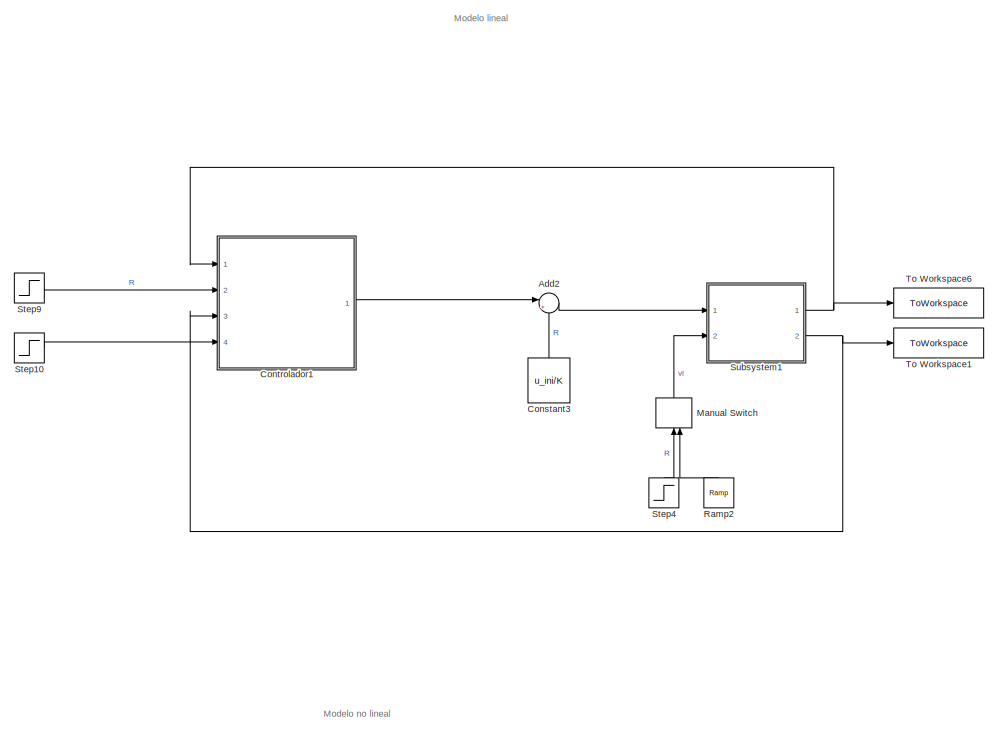
[diagram: root canvas - part 1/2, full width, top band]
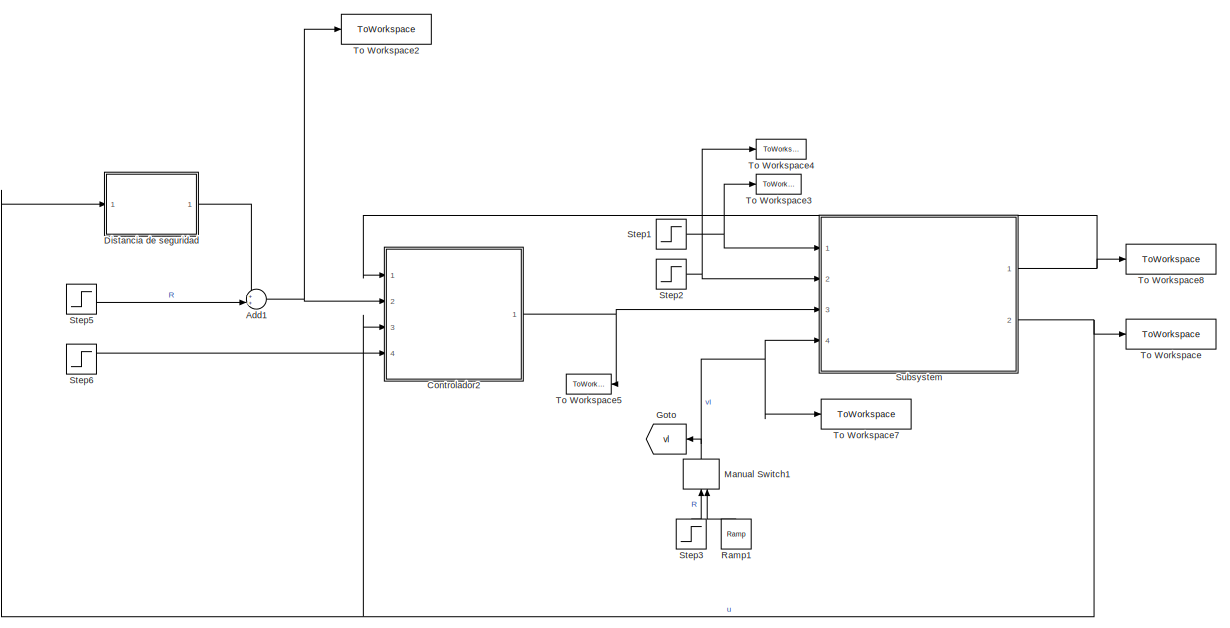
[diagram: root canvas - part 2/2, full width, bottom band]
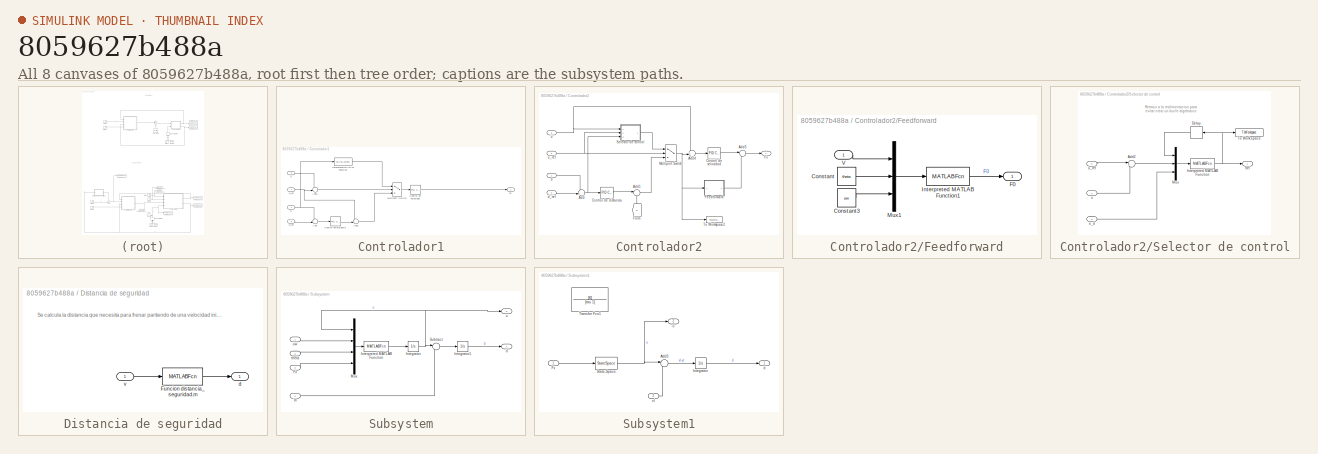
[diagram: thumbnail index - all 8 canvases of the model, root first then tree order]
MODEL slx_8059627b488a
KIND model
CONFIG AbsTol = auto
CONFIG EnableMultiTasking = off
CONFIG FixedStep = auto
CONFIG MaxStep = auto
CONFIG MinStep = auto
CONFIG RelTol = 1e-3
CONFIG SampleTimeConstraint = Unconstrained
CONFIG Solver = VariableStepAuto
CONFIG SolverName = VariableStepAuto
CONFIG StartTime = 0.0
CONFIG StopTime = 200.0
BLOCK [Sum] Add1
  IconShape = round
  InputSameDT = off
  Inputs = ++|
  OutDataTypeStr = Inherit: Inherit via internal rule
  Ports = [2, 1]
  SaturateOnIntegerOverflow = off
BLOCK [Sum] Add2
  Commented = on
  IconShape = round
  InputSameDT = off
  Inputs = |++
  OutDataTypeStr = Inherit: Inherit via internal rule
  Ports = [2, 1]
  SaturateOnIntegerOverflow = off
BLOCK [Constant] Constant3
  Commented = on
  SampleTime = 0
  Value = u_ini/K
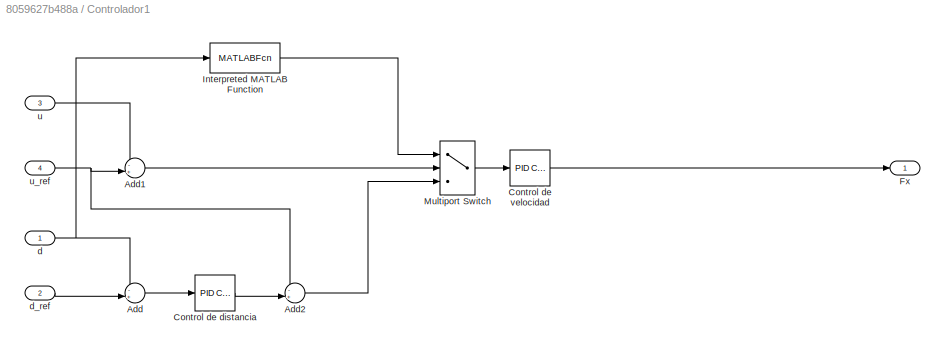
BLOCK [SubSystem] Controlador1
  Commented = on
  Ports = [4, 1]
  RequestExecContextInheritance = off
BLOCK [Sum] Controlador1/Add
  IconShape = round
  InputSameDT = off
  Inputs = -+|
  OutDataTypeStr = Inherit: Inherit via internal rule
  Ports = [2, 1]
  SaturateOnIntegerOverflow = off
BLOCK [Sum] Controlador1/Add1
  IconShape = round
  InputSameDT = off
  Inputs = -+|
  OutDataTypeStr = Inherit: Inherit via internal rule
  Ports = [2, 1]
  SaturateOnIntegerOverflow = off
BLOCK [Sum] Controlador1/Add2
  IconShape = round
  InputSameDT = off
  Inputs = -+|
  OutDataTypeStr = Inherit: Inherit via internal rule
  Ports = [2, 1]
  SaturateOnIntegerOverflow = off
BLOCK [Reference] Controlador1/Control de distancia  REF=simulink/Continuous/PID Controller
  Ports = [1, 1]
  SourceBlock = simulink/Continuous/PID Controller
  SourceProductBaseCode = SL
  SourceProductName = Simulink
  SourceType = PID 1dof
BLOCK [Reference] Controlador1/Control de velocidad  REF=simulink/Continuous/PID Controller
  Ports = [1, 1]
  SourceBlock = simulink/Continuous/PID Controller
  SourceProductBaseCode = SL
  SourceProductName = Simulink
  SourceType = PID 1dof
BLOCK [Outport] Controlador1/Fx
  IconDisplay = Port number
BLOCK [MATLABFcn] Controlador1/Interpreted MATLAB Function
  MATLABFcn = selector_control
  Ports = [1, 1]
BLOCK [MultiPortSwitch] Controlador1/Multiport Switch
  InputSameDT = off
  Inputs = 2
  Ports = [3, 1]
  SaturateOnIntegerOverflow = off
BLOCK [Inport] Controlador1/d
  IconDisplay = Port number
BLOCK [Inport] Controlador1/d_ref
  IconDisplay = Port number
  Port = 2
BLOCK [Inport] Controlador1/u
  IconDisplay = Port number
  Port = 3
BLOCK [Inport] Controlador1/u_ref
  IconDisplay = Port number
  Port = 4
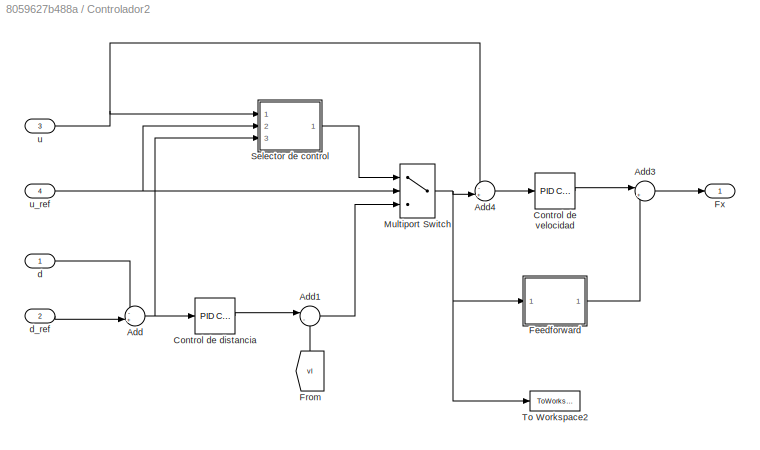
BLOCK [SubSystem] Controlador2
  Ports = [4, 1]
  RequestExecContextInheritance = off
BLOCK [Sum] Controlador2/Add
  IconShape = round
  InputSameDT = off
  Inputs = -+|
  OutDataTypeStr = Inherit: Inherit via internal rule
  Ports = [2, 1]
  SaturateOnIntegerOverflow = off
BLOCK [Sum] Controlador2/Add1
  IconShape = round
  InputSameDT = off
  Inputs = |-+
  OutDataTypeStr = Inherit: Inherit via internal rule
  Ports = [2, 1]
  SaturateOnIntegerOverflow = off
BLOCK [Sum] Controlador2/Add3
  IconShape = round
  InputSameDT = off
  Inputs = |++
  OutDataTypeStr = Inherit: Inherit via internal rule
  Ports = [2, 1]
  SaturateOnIntegerOverflow = off
BLOCK [Sum] Controlador2/Add4
  IconShape = round
  InputSameDT = off
  Inputs = -+|
  OutDataTypeStr = Inherit: Inherit via internal rule
  Ports = [2, 1]
  SaturateOnIntegerOverflow = off
BLOCK [Reference] Controlador2/Control de distancia  REF=simulink/Continuous/PID Controller
  Ports = [1, 1]
  SourceBlock = simulink/Continuous/PID Controller
  SourceProductBaseCode = SL
  SourceProductName = Simulink
  SourceType = PID 1dof
BLOCK [Reference] Controlador2/Control de velocidad  REF=simulink/Continuous/PID Controller
  Ports = [1, 1]
  SourceBlock = simulink/Continuous/PID Controller
  SourceProductBaseCode = SL
  SourceProductName = Simulink
  SourceType = PID 1dof
BLOCK [SubSystem] Controlador2/Feedforward
  Ports = [1, 1]
  RequestExecContextInheritance = off
BLOCK [Constant] Controlador2/Feedforward/Constant
  Value = theta
BLOCK [Constant] Controlador2/Feedforward/Constant3
  Value = uw
BLOCK [Outport] Controlador2/Feedforward/F0
  IconDisplay = Port number
BLOCK [MATLABFcn] Controlador2/Feedforward/Interpreted MATLAB Function1
  MATLABFcn = punto_op
  OutputDimensions = 1
  Ports = [1, 1]
BLOCK [Mux] Controlador2/Feedforward/Mux1
  DisplayOption = bar
  Inputs = 3
  Ports = [3, 1]
BLOCK [Inport] Controlador2/Feedforward/V
  IconDisplay = Port number
BLOCK [From] Controlador2/From
  GotoTag = vl
  TagVisibility = global
BLOCK [Outport] Controlador2/Fx
  IconDisplay = Port number
BLOCK [MultiPortSwitch] Controlador2/Multiport Switch
  InputSameDT = off
  Inputs = 2
  Ports = [3, 1]
  SaturateOnIntegerOverflow = off
BLOCK [SubSystem] Controlador2/Selector de control
  Ports = [3, 1]
  RequestExecContextInheritance = off
BLOCK [Sum] Controlador2/Selector de control/Add2
  IconShape = round
  InputSameDT = off
  Inputs = |+-
  OutDataTypeStr = Inherit: Inherit via internal rule
  Ports = [2, 1]
  SaturateOnIntegerOverflow = off
BLOCK [Delay] Controlador2/Selector de control/Delay
  DelayLength = 1
  InputPortMap = u0
  Ports = [1, 1]
BLOCK [MATLABFcn] Controlador2/Selector de control/Interpreted MATLAB Function
  MATLABFcn = selector_control
  OutputDimensions = 1
  Ports = [1, 1]
BLOCK [Mux] Controlador2/Selector de control/Mux
  DisplayOption = bar
  Inputs = 3
  Ports = [3, 1]
BLOCK [Outport] Controlador2/Selector de control/Sel
  IconDisplay = Port number
BLOCK [ToWorkspace] Controlador2/Selector de control/To Workspace
  FixptAsFi = on
  MaxDataPoints = inf
  Ports = [1]
  SampleTime = -1
  SaveFormat = Timeseries
  VariableName = modo_control
BLOCK [Inport] Controlador2/Selector de control/e_d
  IconDisplay = Port number
  Port = 3
BLOCK [Inport] Controlador2/Selector de control/u
  IconDisplay = Port number
BLOCK [Inport] Controlador2/Selector de control/u_ref
  IconDisplay = Port number
  Port = 2
BLOCK [ToWorkspace] Controlador2/To Workspace2
  FixptAsFi = on
  MaxDataPoints = inf
  Ports = [1]
  SampleTime = -1
  SaveFormat = Timeseries
  VariableName = u_ref
BLOCK [Inport] Controlador2/d
  IconDisplay = Port number
BLOCK [Inport] Controlador2/d_ref
  IconDisplay = Port number
  Port = 2
BLOCK [Inport] Controlador2/u
  IconDisplay = Port number
  Port = 3
BLOCK [Inport] Controlador2/u_ref
  IconDisplay = Port number
  Port = 4
BLOCK [SubSystem] Distancia de seguridad
  Ports = [1, 1]
  RequestExecContextInheritance = off
BLOCK [MATLABFcn] Distancia de seguridad/Funcion distancia_seguridad.m
  MATLABFcn = distancia_seguridad
  Ports = [1, 1]
BLOCK [Outport] Distancia de seguridad/d
  IconDisplay = Port number
BLOCK [Inport] Distancia de seguridad/v
  IconDisplay = Port number
BLOCK [Goto] Goto
  GotoTag = vl
  TagVisibility = global
BLOCK [ManualSwitch] Manual Switch
  Commented = on
BLOCK [ManualSwitch] Manual Switch1
BLOCK [Reference] Ramp1  REF=simulink/Sources/Ramp
  Ports = [0, 1]
  SourceBlock = simulink/Sources/Ramp
  SourceProductBaseCode = SL
  SourceProductName = Simulink
  SourceType = Ramp
BLOCK [Reference] Ramp2  REF=simulink/Sources/Ramp
  Commented = on
  Ports = [0, 1]
  SourceBlock = simulink/Sources/Ramp
  SourceProductBaseCode = SL
  SourceProductName = Simulink
  SourceType = Ramp
BLOCK [Step] Step1
  After = uw+delta_uw
  Before = uw
  SampleTime = 0
  Time = t_pert
BLOCK [Step] Step10
  After = u_ref + delta_u_ref
  Before = u_ref
  Commented = on
  SampleTime = 0
  Time = t_ref
BLOCK [Step] Step2
  After = theta+delta_theta
  Before = theta
  SampleTime = 0
  Time = t_pert
BLOCK [Step] Step3
  After = delta_vl+vl
  Before = vl
  SampleTime = 0
  Time = t_vl
BLOCK [Step] Step4
  After = delta_vl+vl
  Before = vl
  Commented = on
  SampleTime = 0
  Time = t_vl
BLOCK [Step] Step5
  After = d_ref + delta_d_ref
  Before = d_ref
  SampleTime = 0
  Time = t_ref
BLOCK [Step] Step6
  After = u_ref + delta_u_ref
  Before = u_ref
  SampleTime = 0
  Time = t_ref
BLOCK [Step] Step9
  After = d_ref + delta_d_ref
  Before = d_ref
  Commented = on
  SampleTime = 0
  Time = t_ref
BLOCK [SubSystem] Subsystem
  Ports = [4, 2]
  RequestExecContextInheritance = off
BLOCK [Inport] Subsystem/Fx
  IconDisplay = Port number
  Port = 3
BLOCK [Integrator] Subsystem/Integrator
  InitialCondition = u_ini
  Ports = [1, 1]
BLOCK [Integrator] Subsystem/Integrator1
  InitialCondition = d_0
  Ports = [1, 1]
BLOCK [MATLABFcn] Subsystem/Interpreted MATLAB Function
  MATLABFcn = dinamica
  Ports = [1, 1]
BLOCK [Mux] Subsystem/Mux
  DisplayOption = bar
  Ports = [4, 1]
BLOCK [Sum] Subsystem/Subtract
  IconShape = round
  InputSameDT = off
  Inputs = |-+
  OutDataTypeStr = Inherit: Inherit via internal rule
  Ports = [2, 1]
  SaturateOnIntegerOverflow = off
BLOCK [Inport] Subsystem/Vl
  IconDisplay = Port number
  Port = 4
BLOCK [Outport] Subsystem/d
  IconDisplay = Port number
BLOCK [Inport] Subsystem/theta
  IconDisplay = Port number
  Port = 2
BLOCK [Outport] Subsystem/u
  IconDisplay = Port number
  Port = 2
BLOCK [Inport] Subsystem/uw
  IconDisplay = Port number
BLOCK [SubSystem] Subsystem1
  Commented = on
  Ports = [2, 2]
  RequestExecContextInheritance = off
BLOCK [Sum] Subsystem1/Add3
  IconShape = round
  InputSameDT = off
  Inputs = |-+
  OutDataTypeStr = Inherit: Inherit via internal rule
  Ports = [2, 1]
  SaturateOnIntegerOverflow = off
BLOCK [Inport] Subsystem1/Fx
  IconDisplay = Port number
BLOCK [Integrator] Subsystem1/Integrator
  InitialCondition = d_0
  Ports = [1, 1]
BLOCK [StateSpace] Subsystem1/State-Space
  A = -1/tau
  B = K/tau
  D = 0
  InitialCondition = u_ini
  Ports = [1, 1]
BLOCK [TransferFcn] Subsystem1/Transfer Fcn1
  Commented = on
  Denominator = [tau 1]
  Numerator = [K]
BLOCK [Outport] Subsystem1/d
  IconDisplay = Port number
BLOCK [Outport] Subsystem1/u
  IconDisplay = Port number
  Port = 2
BLOCK [Inport] Subsystem1/vl
  IconDisplay = Port number
  Port = 2
BLOCK [ToWorkspace] To Workspace
  FixptAsFi = on
  MaxDataPoints = inf
  Ports = [1]
  SampleTime = -1
  SaveFormat = Timeseries
  VariableName = u
BLOCK [ToWorkspace] To Workspace1
  Commented = on
  FixptAsFi = on
  MaxDataPoints = inf
  Ports = [1]
  SampleTime = -1
  SaveFormat = Timeseries
  VariableName = u_lin
BLOCK [ToWorkspace] To Workspace2
  FixptAsFi = on
  MaxDataPoints = inf
  Ports = [1]
  SampleTime = -1
  SaveFormat = Timeseries
  VariableName = R
BLOCK [ToWorkspace] To Workspace3
  FixptAsFi = on
  MaxDataPoints = inf
  Ports = [1]
  SampleTime = -1
  SaveFormat = Timeseries
  VariableName = uw
BLOCK [ToWorkspace] To Workspace4
  FixptAsFi = on
  MaxDataPoints = inf
  Ports = [1]
  SampleTime = -1
  SaveFormat = Timeseries
  VariableName = theta
BLOCK [ToWorkspace] To Workspace5
  FixptAsFi = on
  MaxDataPoints = inf
  Ports = [1]
  SampleTime = -1
  SaveFormat = Timeseries
  VariableName = Fx
BLOCK [ToWorkspace] To Workspace6
  Commented = on
  FixptAsFi = on
  MaxDataPoints = inf
  Ports = [1]
  SampleTime = -1
  SaveFormat = Timeseries
  VariableName = d_lin
BLOCK [ToWorkspace] To Workspace7
  FixptAsFi = on
  MaxDataPoints = inf
  Ports = [1]
  SampleTime = -1
  SaveFormat = Timeseries
  VariableName = vl
BLOCK [ToWorkspace] To Workspace8
  FixptAsFi = on
  MaxDataPoints = inf
  Ports = [1]
  SampleTime = -1
  SaveFormat = Timeseries
  VariableName = d
ANNOTATION (root): Modelo lineal
ANNOTATION (root): Modelo no lineal
ANNOTATION Controlador2/Selector de control: Retraso a la realimentacion para evitar crear un bucle algebraico
ANNOTATION Distancia de seguridad: Se calcula la distancia que necesita para frenar partiendo de una velocidad inicial V (ver comentarios en la funcion
NET Add1:1 -> Controlador2:2, To Workspace2:1
LINE Add2:1 -> Subsystem1:1
LINE Constant3:1 -> Add2:2
LINE Controlador1/Add1:1 -> Controlador1/Multiport Switch:2
LINE Controlador1/Add2:1 -> Controlador1/Multiport Switch:3
LINE Controlador1/Add:1 -> Controlador1/Control de distancia:1
LINE Controlador1/Control de distancia:1 -> Controlador1/Add2:2
LINE Controlador1/Control de velocidad:1 -> Controlador1/Fx:1
LINE Controlador1/Interpreted MATLAB Function:1 -> Controlador1/Multiport Switch:1
LINE Controlador1/Multiport Switch:1 -> Controlador1/Control de velocidad:1
NET Controlador1/d:1 -> Controlador1/Add:1, Controlador1/Interpreted MATLAB Function:1
LINE Controlador1/d_ref:1 -> Controlador1/Add:2
LINE Controlador1/u:1 -> Controlador1/Add1:1
NET Controlador1/u_ref:1 -> Controlador1/Add1:2, Controlador1/Add2:1
LINE Controlador1:1 -> Add2:1
LINE Controlador2/Add1:1 -> Controlador2/Multiport Switch:3
LINE Controlador2/Add3:1 -> Controlador2/Fx:1
LINE Controlador2/Add4:1 -> Controlador2/Control de velocidad:1
NET Controlador2/Add:1 -> Controlador2/Control de distancia:1, Controlador2/Selector de control:3
LINE Controlador2/Control de distancia:1 -> Controlador2/Add1:1
LINE Controlador2/Control de velocidad:1 -> Controlador2/Add3:1
LINE Controlador2/Feedforward/Constant3:1 -> Controlador2/Feedforward/Mux1:3
LINE Controlador2/Feedforward/Constant:1 -> Controlador2/Feedforward/Mux1:2
LINE Controlador2/Feedforward/Interpreted MATLAB Function1:1 -> Controlador2/Feedforward/F0:1
LINE Controlador2/Feedforward/Mux1:1 -> Controlador2/Feedforward/Interpreted MATLAB Function1:1
LINE Controlador2/Feedforward/V:1 -> Controlador2/Feedforward/Mux1:1
LINE Controlador2/Feedforward:1 -> Controlador2/Add3:2
LINE Controlador2/From:1 -> Controlador2/Add1:2
NET Controlador2/Multiport Switch:1 -> Controlador2/Add4:2, Controlador2/Feedforward:1, Controlador2/To Workspace2:1
LINE Controlador2/Selector de control/Add2:1 -> Controlador2/Selector de control/Mux:2
LINE Controlador2/Selector de control/Delay:1 -> Controlador2/Selector de control/Mux:1
NET Controlador2/Selector de control/Interpreted MATLAB Function:1 -> Controlador2/Selector de control/Delay:1, Controlador2/Selector de control/Sel:1, Controlador2/Selector de control/To Workspace:1
LINE Controlador2/Selector de control/Mux:1 -> Controlador2/Selector de control/Interpreted MATLAB Function:1
LINE Controlador2/Selector de control/e_d:1 -> Controlador2/Selector de control/Mux:3
LINE Controlador2/Selector de control/u:1 -> Controlador2/Selector de control/Add2:2
LINE Controlador2/Selector de control/u_ref:1 -> Controlador2/Selector de control/Add2:1
LINE Controlador2/Selector de control:1 -> Controlador2/Multiport Switch:1
LINE Controlador2/d:1 -> Controlador2/Add:1
LINE Controlador2/d_ref:1 -> Controlador2/Add:2
NET Controlador2/u:1 -> Controlador2/Add4:1, Controlador2/Selector de control:1
NET Controlador2/u_ref:1 -> Controlador2/Multiport Switch:2, Controlador2/Selector de control:2
NET Controlador2:1 -> Subsystem:3, To Workspace5:1
LINE Distancia de seguridad/Funcion distancia_seguridad.m:1 -> Distancia de seguridad/d:1
LINE Distancia de seguridad/v:1 -> Distancia de seguridad/Funcion distancia_seguridad.m:1
LINE Distancia de seguridad:1 -> Add1:1
NET Manual Switch1:1 -> Goto:1, Subsystem:4, To Workspace7:1
LINE Manual Switch:1 -> Subsystem1:2
LINE Ramp1:1 -> Manual Switch1:2
LINE Ramp2:1 -> Manual Switch:2
LINE Step10:1 -> Controlador1:4
NET Step1:1 -> Subsystem:1, To Workspace3:1
NET Step2:1 -> Subsystem:2, To Workspace4:1
LINE Step3:1 -> Manual Switch1:1
LINE Step4:1 -> Manual Switch:1
LINE Step5:1 -> Add1:2
LINE Step6:1 -> Controlador2:4
LINE Step9:1 -> Controlador1:2
LINE Subsystem/Fx:1 -> Subsystem/Mux:4
LINE Subsystem/Integrator1:1 -> Subsystem/d:1
NET Subsystem/Integrator:1 -> Subsystem/Mux:1, Subsystem/Subtract:1, Subsystem/u:1
LINE Subsystem/Interpreted MATLAB Function:1 -> Subsystem/Integrator:1
LINE Subsystem/Mux:1 -> Subsystem/Interpreted MATLAB Function:1
LINE Subsystem/Subtract:1 -> Subsystem/Integrator1:1
LINE Subsystem/Vl:1 -> Subsystem/Subtract:2
LINE Subsystem/theta:1 -> Subsystem/Mux:3
LINE Subsystem/uw:1 -> Subsystem/Mux:2
LINE Subsystem1/Add3:1 -> Subsystem1/Integrator:1
LINE Subsystem1/Fx:1 -> Subsystem1/State-Space:1
LINE Subsystem1/Integrator:1 -> Subsystem1/d:1
NET Subsystem1/State-Space:1 -> Subsystem1/Add3:1, Subsystem1/u:1
LINE Subsystem1/vl:1 -> Subsystem1/Add3:2
NET Subsystem1:1 -> Controlador1:1, To Workspace6:1
NET Subsystem1:2 -> Controlador1:3, To Workspace1:1
NET Subsystem:1 -> Controlador2:1, To Workspace8:1
NET Subsystem:2 -> Controlador2:3, Distancia de seguridad:1, To Workspace:1
note: NET lines group one-source signal fan-out (src -> all destinations, sorted); 1:1 wires keep LINE
